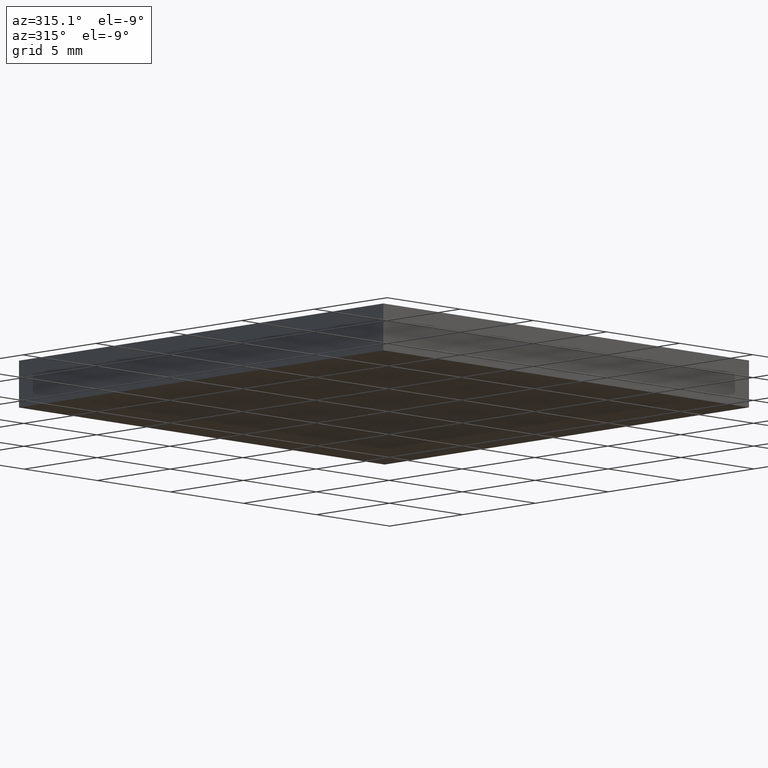
[diagram: clean part render]
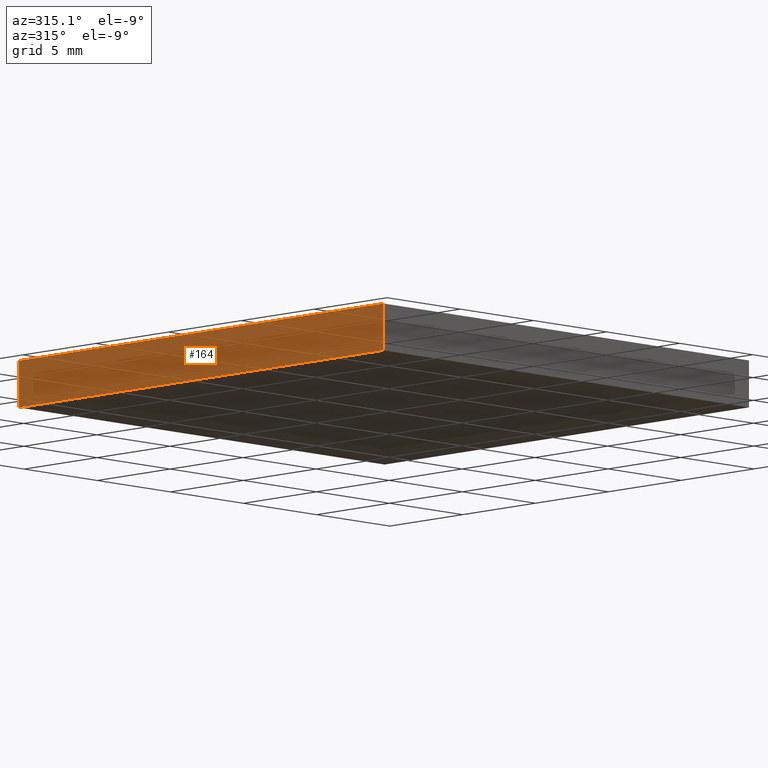
[diagram: same view with one face highlighted and labeled with its STEP entity id]
A machine part, auxiliary view. The second image highlights one B-rep face of the part: STEP entity #164.
In plain terms, the highlighted planar face has unit normal (1, -0, 0).
Its self-contained STEP definition (entity closure, byte-faithful):
#4 = VECTOR ( 'NONE', #199, 1000.000000000000000 ) ;
#10 = DIRECTION ( 'NONE',  ( -5.551115123125785700E-016, -1.000000000000000000, 0.0000000000000000000 ) ) ;
#15 = LINE ( 'NONE', #110, #4 ) ;
#17 = CARTESIAN_POINT ( 'NONE',  ( 88.74793577588509700, 74.06324183452659300, 2.299999999999999800 ) ) ;
#30 = ORIENTED_EDGE ( 'NONE', *, *, #163, .T. ) ;
#36 = DIRECTION ( 'NONE',  ( -5.551115123125785700E-016, -1.000000000000000000, 0.0000000000000000000 ) ) ;
#44 = FACE_OUTER_BOUND ( 'NONE', #152, .T. ) ;
#49 = VECTOR ( 'NONE', #10, 1000.000000000000000 ) ;
#59 = DIRECTION ( 'NONE',  ( 1.000000000000000000, -5.551115123125785700E-016, 0.0000000000000000000 ) ) ;
#61 = VERTEX_POINT ( 'NONE', #196 ) ;
#66 = EDGE_CURVE ( 'NONE', #61, #126, #125, .T. ) ;
#70 = VERTEX_POINT ( 'NONE', #185 ) ;
#72 = DIRECTION ( 'NONE',  ( -0.0000000000000000000, -0.0000000000000000000, -1.000000000000000000 ) ) ;
#73 = PLANE ( 'NONE',  #194 ) ;
#77 = EDGE_CURVE ( 'NONE', #193, #70, #15, .T. ) ;
#92 = CARTESIAN_POINT ( 'NONE',  ( 88.74793577588509700, 74.06324183452659300, 0.0000000000000000000 ) ) ;
#97 = ORIENTED_EDGE ( 'NONE', *, *, #77, .F. ) ;
#105 = LINE ( 'NONE', #198, #49 ) ;
#110 = CARTESIAN_POINT ( 'NONE',  ( 88.74793577588508200, 49.06324183452660000, 2.299999999999999800 ) ) ;
#111 = LINE ( 'NONE', #134, #175 ) ;
#119 = CARTESIAN_POINT ( 'NONE',  ( 88.74793577588509700, 74.06324183452659300, 2.299999999999999800 ) ) ;
#120 = ORIENTED_EDGE ( 'NONE', *, *, #66, .T. ) ;
#125 = LINE ( 'NONE', #17, #129 ) ;
#126 = VERTEX_POINT ( 'NONE', #92 ) ;
#129 = VECTOR ( 'NONE', #72, 1000.000000000000000 ) ;
#134 = CARTESIAN_POINT ( 'NONE',  ( 88.74793577588509700, 74.06324183452659300, 0.0000000000000000000 ) ) ;
#150 = EDGE_CURVE ( 'NONE', #61, #193, #105, .T. ) ;
#151 = CARTESIAN_POINT ( 'NONE',  ( 88.74793577588508200, 49.06324183452660000, 2.299999999999999800 ) ) ;
#152 = EDGE_LOOP ( 'NONE', ( #30, #97, #174, #120 ) ) ;
#163 = EDGE_CURVE ( 'NONE', #126, #70, #111, .T. ) ;
#164 = ADVANCED_FACE ( 'NONE', ( #44 ), #73, .F. ) ;
#174 = ORIENTED_EDGE ( 'NONE', *, *, #150, .F. ) ;
#175 = VECTOR ( 'NONE', #36, 1000.000000000000000 ) ;
#185 = CARTESIAN_POINT ( 'NONE',  ( 88.74793577588508200, 49.06324183452660000, 0.0000000000000000000 ) ) ;
#186 = DIRECTION ( 'NONE',  ( 5.551115123125785700E-016, 1.000000000000000000, 0.0000000000000000000 ) ) ;
#193 = VERTEX_POINT ( 'NONE', #151 ) ;
#194 = AXIS2_PLACEMENT_3D ( 'NONE', #119, #59, #186 ) ;
#196 = CARTESIAN_POINT ( 'NONE',  ( 88.74793577588509700, 74.06324183452659300, 2.299999999999999800 ) ) ;
#198 = CARTESIAN_POINT ( 'NONE',  ( 88.74793577588509700, 74.06324183452659300, 2.299999999999999800 ) ) ;
#199 = DIRECTION ( 'NONE',  ( -0.0000000000000000000, -0.0000000000000000000, -1.000000000000000000 ) ) ;